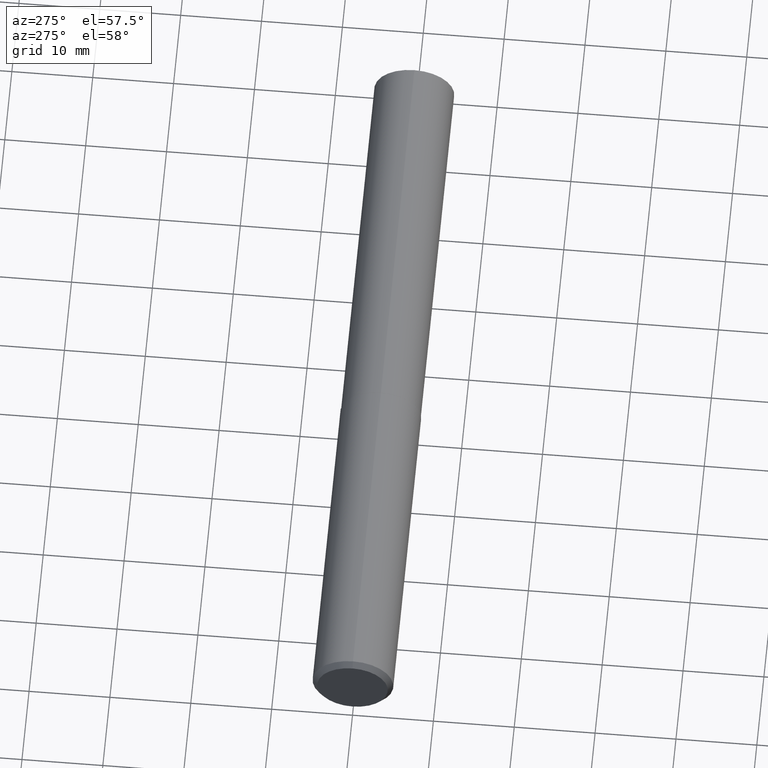
[diagram: clean part render]
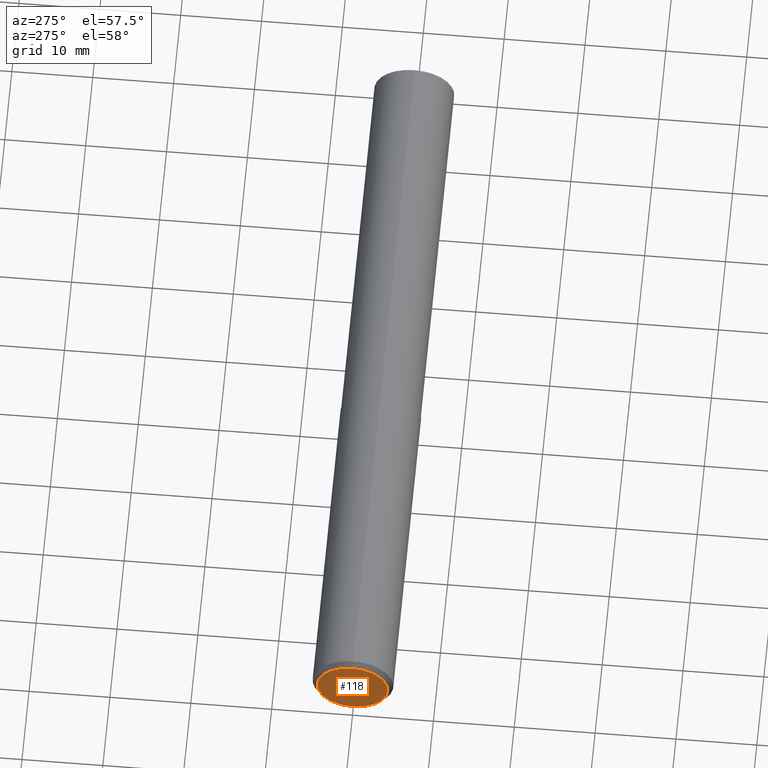
[diagram: same view with one face highlighted and labeled with its STEP entity id]
A machine part, auxiliary view. The second image highlights one B-rep face of the part: STEP entity #118.
In plain terms, the highlighted planar face has unit normal (-1, 0, 0).
Its self-contained STEP definition (entity closure, byte-faithful):
#14 = DIRECTION ( 'NONE',  ( -1.000000000000000000, 0.000000000000000000, 0.000000000000000000 ) ) ;
#23 = VERTEX_POINT ( 'NONE', #323 ) ;
#24 = DIRECTION ( 'NONE',  ( 0.000000000000000000, 0.000000000000000000, -1.000000000000000000 ) ) ;
#41 = CARTESIAN_POINT ( 'NONE',  ( 0.000000000000000000, 0.000000000000000000, 0.000000000000000000 ) ) ;
#59 = VERTEX_POINT ( 'NONE', #303 ) ;
#61 = EDGE_CURVE ( 'NONE', #23, #59, #208, .T. ) ;
#107 = CARTESIAN_POINT ( 'NONE',  ( 3.061616997868404646E-19, 0.1718503937007873628, 0.000000000000000000 ) ) ;
#118 = ADVANCED_FACE ( 'NONE', ( #331 ), #281, .T. ) ;
#141 = ORIENTED_EDGE ( 'NONE', *, *, #61, .F. ) ;
#158 = DIRECTION ( 'NONE',  ( 0.000000000000000000, 0.000000000000000000, -1.000000000000000000 ) ) ;
#181 = EDGE_LOOP ( 'NONE', ( #141, #300 ) ) ;
#197 = AXIS2_PLACEMENT_3D ( 'NONE', #107, #14, #220 ) ;
#208 = CIRCLE ( 'NONE', #357, 0.1718503937007873628 ) ;
#214 = AXIS2_PLACEMENT_3D ( 'NONE', #370, #230, #24 ) ;
#220 = DIRECTION ( 'NONE',  ( 0.000000000000000000, 0.000000000000000000, 1.000000000000000000 ) ) ;
#230 = DIRECTION ( 'NONE',  ( 1.000000000000000000, -0.000000000000000000, -0.000000000000000000 ) ) ;
#281 = PLANE ( 'NONE',  #197 ) ;
#294 = CIRCLE ( 'NONE', #214, 0.1718503937007873628 ) ;
#300 = ORIENTED_EDGE ( 'NONE', *, *, #328, .F. ) ;
#303 = CARTESIAN_POINT ( 'NONE',  ( 0.000000000000000000, 2.257641195672236334E-17, 0.1718503937007873628 ) ) ;
#323 = CARTESIAN_POINT ( 'NONE',  ( 0.000000000000000000, 0.000000000000000000, -0.1718503937007873628 ) ) ;
#326 = DIRECTION ( 'NONE',  ( 1.000000000000000000, -0.000000000000000000, -0.000000000000000000 ) ) ;
#328 = EDGE_CURVE ( 'NONE', #59, #23, #294, .T. ) ;
#331 = FACE_OUTER_BOUND ( 'NONE', #181, .T. ) ;
#357 = AXIS2_PLACEMENT_3D ( 'NONE', #41, #326, #158 ) ;
#370 = CARTESIAN_POINT ( 'NONE',  ( 0.000000000000000000, 0.000000000000000000, 0.000000000000000000 ) ) ;